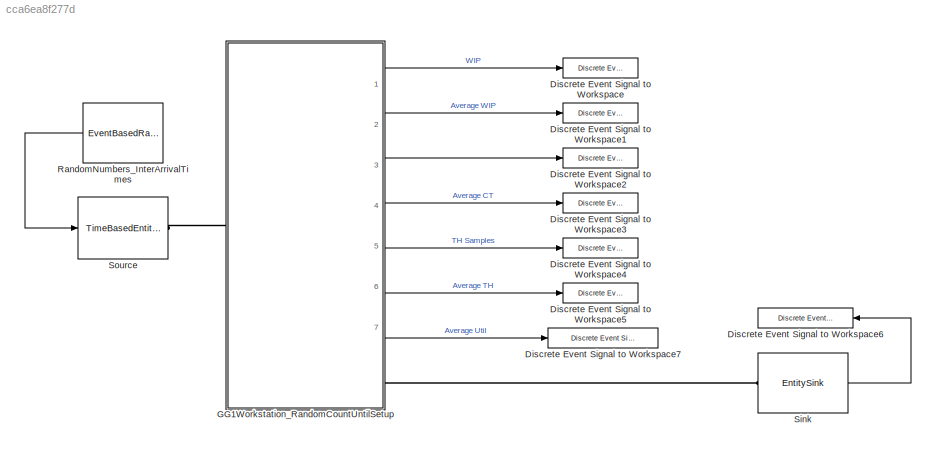
MODEL slx_cca6ea8f277d
KIND model
CONFIG AbsTol = auto
CONFIG FixedStep = auto
CONFIG InitFcn = se_randomizeseeds(gcs, 'Mode', 'All')
CONFIG MaxStep = auto
CONFIG MinStep = auto
CONFIG RelTol = 1e-3
CONFIG SampleTimeConstraint = Unconstrained
CONFIG Solver = ode45
CONFIG SolverMode = SingleTasking
CONFIG SolverName = ode45
CONFIG StartTime = 0.0
CONFIG StopTime = 50000
BLOCK [Reference] Discrete Event Signal to Workspace  REF=simeventslib/SimEvents
Sinks/Discrete Event Signal
to Workspace
  Decimation = 1
  MaxDataPoints = inf
  Ports = [1]
  SaveFormat = Structure With Time
  SourceBlock = simeventslib/SimEvents\nSinks/Discrete Event Signal\nto Workspace
  SourceType = Discrete Event Signal to Workspace
  VariableName = WIP_samples
  isMonitorOnly = off
  isRecordIC = off
BLOCK [Reference] Discrete Event Signal to Workspace1  REF=simeventslib/SimEvents
Sinks/Discrete Event Signal
to Workspace
  Decimation = 1
  MaxDataPoints = inf
  Ports = [1]
  SaveFormat = Structure With Time
  SourceBlock = simeventslib/SimEvents\nSinks/Discrete Event Signal\nto Workspace
  SourceType = Discrete Event Signal to Workspace
  VariableName = WIP_average
  isMonitorOnly = off
  isRecordIC = off
BLOCK [Reference] Discrete Event Signal to Workspace2  REF=simeventslib/SimEvents
Sinks/Discrete Event Signal
to Workspace
  Decimation = 1
  MaxDataPoints = inf
  Ports = [1]
  SaveFormat = Structure With Time
  SourceBlock = simeventslib/SimEvents\nSinks/Discrete Event Signal\nto Workspace
  SourceType = Discrete Event Signal to Workspace
  VariableName = CT_samples
  isMonitorOnly = off
  isRecordIC = off
BLOCK [Reference] Discrete Event Signal to Workspace3  REF=simeventslib/SimEvents
Sinks/Discrete Event Signal
to Workspace
  Decimation = 1
  MaxDataPoints = inf
  Ports = [1]
  SaveFormat = Structure With Time
  SourceBlock = simeventslib/SimEvents\nSinks/Discrete Event Signal\nto Workspace
  SourceType = Discrete Event Signal to Workspace
  VariableName = CT_average
  isMonitorOnly = off
  isRecordIC = off
BLOCK [Reference] Discrete Event Signal to Workspace4  REF=simeventslib/SimEvents
Sinks/Discrete Event Signal
to Workspace
  Decimation = 1
  MaxDataPoints = inf
  Ports = [1]
  SaveFormat = Structure With Time
  SourceBlock = simeventslib/SimEvents\nSinks/Discrete Event Signal\nto Workspace
  SourceType = Discrete Event Signal to Workspace
  VariableName = TH_samples
  isMonitorOnly = off
  isRecordIC = off
BLOCK [Reference] Discrete Event Signal to Workspace5  REF=simeventslib/SimEvents
Sinks/Discrete Event Signal
to Workspace
  Decimation = 1
  MaxDataPoints = inf
  Ports = [1]
  SaveFormat = Structure With Time
  SourceBlock = simeventslib/SimEvents\nSinks/Discrete Event Signal\nto Workspace
  SourceType = Discrete Event Signal to Workspace
  VariableName = TH_average
  isMonitorOnly = off
  isRecordIC = off
BLOCK [Reference] Discrete Event Signal to Workspace6  REF=simeventslib/SimEvents
Sinks/Discrete Event Signal
to Workspace
  Decimation = 1
  MaxDataPoints = inf
  Ports = [1]
  SaveFormat = Structure With Time
  SourceBlock = simeventslib/SimEvents\nSinks/Discrete Event Signal\nto Workspace
  SourceType = Discrete Event Signal to Workspace
  VariableName = nDepartures
  isMonitorOnly = off
  isRecordIC = off
BLOCK [Reference] Discrete Event Signal to Workspace7  REF=simeventslib/SimEvents
Sinks/Discrete Event Signal
to Workspace
  Decimation = 1
  MaxDataPoints = inf
  Ports = [1]
  SaveFormat = Structure With Time
  SourceBlock = simeventslib/SimEvents\nSinks/Discrete Event Signal\nto Workspace
  SourceType = Discrete Event Signal to Workspace
  VariableName = uServers_average
  isMonitorOnly = off
  isRecordIC = off
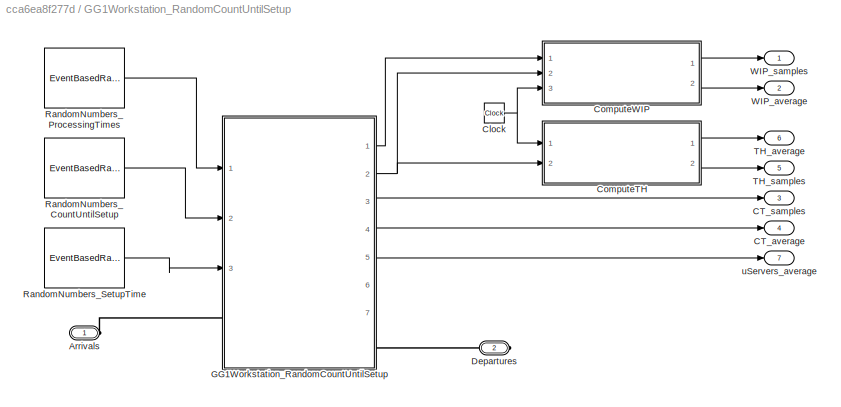
BLOCK [SubSystem] GG1Workstation_RandomCountUntilSetup
  CopyFcn = set_param(gcb, 'LinkStatus', 'none');
  InitFcn = se_randomizeseeds(gcs, 'Mode', 'All')
  Ports = [0, 7, 0, 0, 0, 1, 1]
  RequestExecContextInheritance = off
BLOCK [PMIOPort] GG1Workstation_RandomCountUntilSetup/Arrivals
  Port = 1
  Side = Left
BLOCK [Outport] GG1Workstation_RandomCountUntilSetup/CT_average
  IconDisplay = Port number
  Port = 4
BLOCK [Outport] GG1Workstation_RandomCountUntilSetup/CT_samples
  IconDisplay = Port number
  Port = 3
BLOCK [Clock] GG1Workstation_RandomCountUntilSetup/Clock
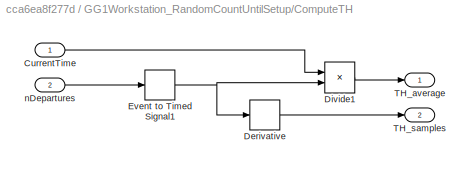
BLOCK [SubSystem] GG1Workstation_RandomCountUntilSetup/ComputeTH
  Ports = [2, 2]
  RequestExecContextInheritance = off
BLOCK [Inport] GG1Workstation_RandomCountUntilSetup/ComputeTH/CurrentTime
  IconDisplay = Port number
BLOCK [Derivative] GG1Workstation_RandomCountUntilSetup/ComputeTH/Derivative
BLOCK [Product] GG1Workstation_RandomCountUntilSetup/ComputeTH/Divide1
  InputSameDT = off
  Inputs = /*
  OutDataTypeStr = Inherit: Inherit via internal rule
  Ports = [2, 1]
  RndMeth = Floor
  SaturateOnIntegerOverflow = off
BLOCK [EventToTimedSignal] GG1Workstation_RandomCountUntilSetup/ComputeTH/Event to Timed Signal1
  InputPortMap = u0
  OutputPortMap = o0
  Ports = [1, 1]
BLOCK [Outport] GG1Workstation_RandomCountUntilSetup/ComputeTH/TH_average
  IconDisplay = Port number
BLOCK [Outport] GG1Workstation_RandomCountUntilSetup/ComputeTH/TH_samples
  IconDisplay = Port number
  Port = 2
BLOCK [Inport] GG1Workstation_RandomCountUntilSetup/ComputeTH/nDepartures
  IconDisplay = Port number
  Port = 2
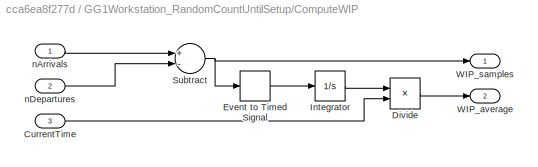
BLOCK [SubSystem] GG1Workstation_RandomCountUntilSetup/ComputeWIP
  Ports = [3, 2]
  RequestExecContextInheritance = off
BLOCK [Inport] GG1Workstation_RandomCountUntilSetup/ComputeWIP/CurrentTime
  IconDisplay = Port number
  Port = 3
BLOCK [Product] GG1Workstation_RandomCountUntilSetup/ComputeWIP/Divide
  InputSameDT = off
  Inputs = */
  OutDataTypeStr = Inherit: Inherit via internal rule
  Ports = [2, 1]
  RndMeth = Floor
  SaturateOnIntegerOverflow = off
BLOCK [EventToTimedSignal] GG1Workstation_RandomCountUntilSetup/ComputeWIP/Event to Timed Signal
  InputPortMap = u0
  OutputPortMap = o0
  Ports = [1, 1]
BLOCK [Integrator] GG1Workstation_RandomCountUntilSetup/ComputeWIP/Integrator
  Ports = [1, 1]
BLOCK [Sum] GG1Workstation_RandomCountUntilSetup/ComputeWIP/Subtract
  InputSameDT = off
  Inputs = +-
  OutDataTypeStr = Inherit: Inherit via internal rule
  Ports = [2, 1]
  SaturateOnIntegerOverflow = off
BLOCK [Outport] GG1Workstation_RandomCountUntilSetup/ComputeWIP/WIP_average
  IconDisplay = Port number
  Port = 2
BLOCK [Outport] GG1Workstation_RandomCountUntilSetup/ComputeWIP/WIP_samples
  IconDisplay = Port number
BLOCK [Inport] GG1Workstation_RandomCountUntilSetup/ComputeWIP/nArrivals
  IconDisplay = Port number
BLOCK [Inport] GG1Workstation_RandomCountUntilSetup/ComputeWIP/nDepartures
  IconDisplay = Port number
  Port = 2
BLOCK [PMIOPort] GG1Workstation_RandomCountUntilSetup/Departures
  Port = 2
  Side = Right
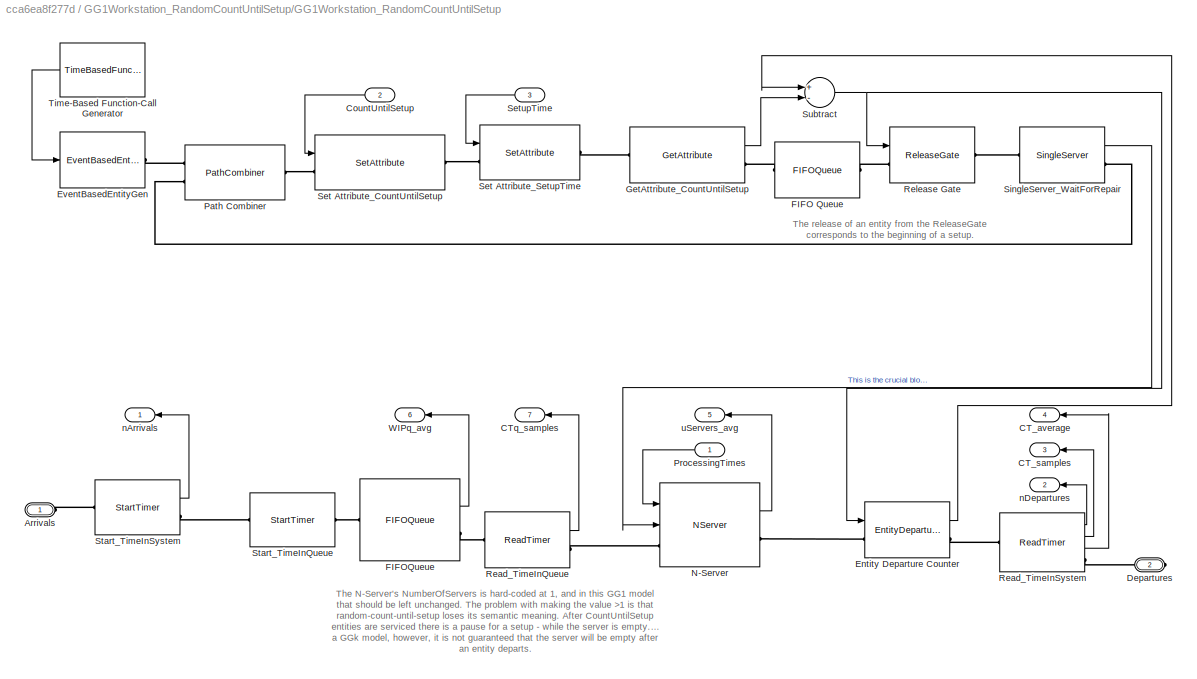
BLOCK [SubSystem] GG1Workstation_RandomCountUntilSetup/GG1Workstation_RandomCountUntilSetup
  Ports = [3, 7, 0, 0, 0, 1, 1]
  RequestExecContextInheritance = off
BLOCK [PMIOPort] GG1Workstation_RandomCountUntilSetup/GG1Workstation_RandomCountUntilSetup/Arrivals
  Port = 1
  Side = Left
BLOCK [Outport] GG1Workstation_RandomCountUntilSetup/GG1Workstation_RandomCountUntilSetup/CT_average
  IconDisplay = Port number
  Port = 4
BLOCK [Outport] GG1Workstation_RandomCountUntilSetup/GG1Workstation_RandomCountUntilSetup/CT_samples
  IconDisplay = Port number
  Port = 3
BLOCK [Outport] GG1Workstation_RandomCountUntilSetup/GG1Workstation_RandomCountUntilSetup/CTq_samples
  IconDisplay = Port number
  Port = 7
BLOCK [Inport] GG1Workstation_RandomCountUntilSetup/GG1Workstation_RandomCountUntilSetup/CountUntilSetup
  IconDisplay = Port number
  Port = 2
BLOCK [PMIOPort] GG1Workstation_RandomCountUntilSetup/GG1Workstation_RandomCountUntilSetup/Departures
  Port = 2
  Side = Right
BLOCK [EntityDepartureCounter] GG1Workstation_RandomCountUntilSetup/GG1Workstation_RandomCountUntilSetup/Entity Departure Counter
  CounterResetTypeOption = Trigger from port tr
  InputPortMap = u0
  NumberDepartedToAttribute = off
  NumberDepartedToSignal = on
  OutputPortMap = o0
  Ports = [1, 1, 0, 0, 0, 1, 1]
BLOCK [EventBasedEntityGenerator] GG1Workstation_RandomCountUntilSetup/GG1Workstation_RandomCountUntilSetup/EventBasedEntityGen
  GenerateEntitiesUpon = Function call from port fcn
  InputPortMap = u0
  Ports = [1, 0, 0, 0, 0, 0, 1]
BLOCK [FIFOQueue] GG1Workstation_RandomCountUntilSetup/GG1Workstation_RandomCountUntilSetup/FIFO Queue
  Capacity = Inf
  Ports = [0, 0, 0, 0, 0, 1, 1]
BLOCK [FIFOQueue] GG1Workstation_RandomCountUntilSetup/GG1Workstation_RandomCountUntilSetup/FIFOQueue
  Capacity = Inf
  OutputPortMap = o3
  Ports = [0, 1, 0, 0, 0, 1, 1]
  StatAverageQueueLength = on
BLOCK [GetAttribute] GG1Workstation_RandomCountUntilSetup/GG1Workstation_RandomCountUntilSetup/GetAttribute_CountUntilSetup
  AttributeName = CountUntilSetup
  EvaluatedDefaultAttributeValue = { []}
  OutputPortMap = o1
  Ports = [0, 1, 0, 0, 0, 1, 1]
BLOCK [NServer] GG1Workstation_RandomCountUntilSetup/GG1Workstation_RandomCountUntilSetup/N-Server
  AllowServiceControl = on
  BlockWhileSignalOn = on
  InputPortMap = u0,u1
  NumberOfServers = 1
  OutputPortMap = o5
  Ports = [2, 1, 0, 0, 0, 1, 1]
  ServiceTimeFrom = Signal port t
  StatUtilization = on
BLOCK [PathCombiner] GG1Workstation_RandomCountUntilSetup/GG1Workstation_RandomCountUntilSetup/Path Combiner
  NumberInputPorts = 2
  Ports = [0, 0, 0, 0, 0, 2, 1]
BLOCK [Inport] GG1Workstation_RandomCountUntilSetup/GG1Workstation_RandomCountUntilSetup/ProcessingTimes
  IconDisplay = Port number
BLOCK [ReadTimer] GG1Workstation_RandomCountUntilSetup/GG1Workstation_RandomCountUntilSetup/Read_TimeInQueue
  OutputPortMap = o2
  Ports = [0, 1, 0, 0, 0, 1, 1]
  StatTimeElapsed = on
  TimerTag = TimeInQueue
BLOCK [ReadTimer] GG1Workstation_RandomCountUntilSetup/GG1Workstation_RandomCountUntilSetup/Read_TimeInSystem
  OutputPortMap = o0,o2,o3
  Ports = [0, 3, 0, 0, 0, 1, 1]
  StatAverageTimeElapsed = on
  StatNumberDeparted = on
  StatTimeElapsed = on
  TimerTag = TimeInSystem
BLOCK [ReleaseGate] GG1Workstation_RandomCountUntilSetup/GG1Workstation_RandomCountUntilSetup/Release Gate
  InputPortMap = u0
  OpenGateUpon = Trigger from port tr
  Ports = [1, 0, 0, 0, 0, 1, 1]
BLOCK [SetAttribute] GG1Workstation_RandomCountUntilSetup/GG1Workstation_RandomCountUntilSetup/Set Attribute_CountUntilSetup
  AttributeFrom = Signal port
  AttributeName = CountUntilSetup
  EvaluatedAttributeValue = { []}
  InputPortMap = u0
  Ports = [1, 0, 0, 0, 0, 1, 1]
BLOCK [SetAttribute] GG1Workstation_RandomCountUntilSetup/GG1Workstation_RandomCountUntilSetup/Set Attribute_SetupTime
  AttributeFrom = Signal port
  AttributeName = SetupTime
  EvaluatedAttributeValue = { []}
  InputPortMap = u0
  Ports = [1, 0, 0, 0, 0, 1, 1]
BLOCK [Inport] GG1Workstation_RandomCountUntilSetup/GG1Workstation_RandomCountUntilSetup/SetupTime
  IconDisplay = Port number
  Port = 3
BLOCK [SingleServer] GG1Workstation_RandomCountUntilSetup/GG1Workstation_RandomCountUntilSetup/SingleServer_WaitForRepair
  AttributeName = SetupTime
  OutputPortMap = o1
  Ports = [0, 1, 0, 0, 0, 1, 1]
  ServiceTimeFrom = Attribute
  StatNumberInBlock = on
BLOCK [StartTimer] GG1Workstation_RandomCountUntilSetup/GG1Workstation_RandomCountUntilSetup/Start_TimeInQueue
  Ports = [0, 0, 0, 0, 0, 1, 1]
  TimerStartedOption = Restart
  TimerTag = TimeInQueue
BLOCK [StartTimer] GG1Workstation_RandomCountUntilSetup/GG1Workstation_RandomCountUntilSetup/Start_TimeInSystem
  OutputPortMap = o0
  Ports = [0, 1, 0, 0, 0, 1, 1]
  StatNumberDeparted = on
  TimerStartedOption = Restart
  TimerTag = TimeInSystem
BLOCK [Sum] GG1Workstation_RandomCountUntilSetup/GG1Workstation_RandomCountUntilSetup/Subtract
  InputSameDT = off
  Inputs = +-
  OutDataTypeStr = Inherit: Inherit via internal rule
  Ports = [2, 1]
  SaturateOnIntegerOverflow = off
BLOCK [TimeBasedFunctionCallGenerator] GG1Workstation_RandomCountUntilSetup/GG1Workstation_RandomCountUntilSetup/Time-Based Function-Call Generator
  EventGenerationMode = Only at simulation start
  OutputPortMap = o0
  Ports = [0, 1]
BLOCK [Outport] GG1Workstation_RandomCountUntilSetup/GG1Workstation_RandomCountUntilSetup/WIPq_avg
  IconDisplay = Port number
  Port = 6
BLOCK [Outport] GG1Workstation_RandomCountUntilSetup/GG1Workstation_RandomCountUntilSetup/nArrivals
  IconDisplay = Port number
BLOCK [Outport] GG1Workstation_RandomCountUntilSetup/GG1Workstation_RandomCountUntilSetup/nDepartures
  IconDisplay = Port number
  Port = 2
BLOCK [Outport] GG1Workstation_RandomCountUntilSetup/GG1Workstation_RandomCountUntilSetup/uServers_avg
  IconDisplay = Port number
  Port = 5
BLOCK [EventBasedRandomNumber] GG1Workstation_RandomCountUntilSetup/RandomNumbers_CountUntilSetup
  Distribution = Geometric
  OutputPortMap = o0
  Ports = [0, 1]
  Seed = 60986
  cdfVecCont = 40
  maxBeta = 40
  maxTri = 10
  maxUnid = 40
  maxUnif = 40
  meanExp = 10
  meanNorm = 1000
  meanPoiss = 10
  minBeta = 40
  minTri = 10
  minUnid = 40
  minUnif = 40
  modeTri = 10
  numTrialBino = 40
  numValueUnid = 40
  pOneBern = 40
  pSuccessBino = 40
  pSuccessGeo = 1/11
  probVecDisc = 40
  scaleGam = 166.6667
  scaleLogl = 40
  scaleLogn = 40
  scaleWbl = 40
  shape1Beta = 40
  shape2Beta = 40
  shapeGam = 0.72
  shapeLogn = 40
  shapeWbl = 40
  stdNorm = 1.4901e-08
  thresholdLogl = 40
  thresholdLogn = 40
  thresholdWbl = 40
  valueVecCont = 40
  valueVecDisc = 40
BLOCK [EventBasedRandomNumber] GG1Workstation_RandomCountUntilSetup/RandomNumbers_ProcessingTimes
  Distribution = Triangular
  OutputPortMap = o0
  Ports = [0, 1]
  Seed = 11535
  cdfVecCont = 40
  maxBeta = 40
  maxTri = 1.4
  maxUnid = 40
  maxUnif = 40
  meanNorm = 95
  meanPoiss = 40
  minBeta = 40
  minTri = 0.4
  minUnid = 40
  minUnif = 40
  modeTri = 1.35
  numTrialBino = 40
  numValueUnid = 40
  pOneBern = 40
  pSuccessBino = 40
  pSuccessGeo = 40
  probVecDisc = 40
  scaleGam = 40
  scaleLogl = 40
  scaleLogn = 40
  scaleWbl = 40
  shape1Beta = 40
  shape2Beta = 40
  shapeGam = 40
  shapeLogn = 40
  shapeWbl = 40
  stdNorm = eps
  thresholdGam = 40
  thresholdLogl = 40
  thresholdLogn = 40
  thresholdWbl = 40
  valueVecCont = 40
  valueVecDisc = 40
BLOCK [EventBasedRandomNumber] GG1Workstation_RandomCountUntilSetup/RandomNumbers_SetupTime
  OutputPortMap = o0
  Ports = [0, 1]
  Seed = 14752
  cdfVecCont = 40
  maxBeta = 40
  maxTri = 38
  maxUnid = 40
  maxUnif = 40
  meanExp = 2
  meanNorm = eps
  meanPoiss = 40
  minBeta = 40
  minTri = 38
  minUnid = 40
  minUnif = 40
  modeTri = 38
  numTrialBino = 40
  numValueUnid = 40
  pOneBern = 40
  pSuccessBino = 40
  probVecDisc = [0 1]
  scaleGam = 20
  scaleLogl = 40
  scaleLogn = 40
  scaleWbl = 40
  shape1Beta = 40
  shape2Beta = 40
  shapeLogn = 40
  shapeWbl = 40
  stdNorm = eps
  thresholdLogl = 40
  thresholdLogn = 40
  thresholdWbl = 40
  valueVecCont = 40
BLOCK [Outport] GG1Workstation_RandomCountUntilSetup/TH_average
  IconDisplay = Port number
  Port = 6
BLOCK [Outport] GG1Workstation_RandomCountUntilSetup/TH_samples
  IconDisplay = Port number
  Port = 5
BLOCK [Outport] GG1Workstation_RandomCountUntilSetup/WIP_average
  IconDisplay = Port number
  Port = 2
BLOCK [Outport] GG1Workstation_RandomCountUntilSetup/WIP_samples
  IconDisplay = Port number
BLOCK [Outport] GG1Workstation_RandomCountUntilSetup/uServers_average
  IconDisplay = Port number
  Port = 7
BLOCK [EventBasedRandomNumber] RandomNumbers_InterArrivalTimes
  OutputPortMap = o0
  Ports = [0, 1]
  Seed = 17969
  meanExp = 1.5
  meanNorm = 100
  scaleGam = 10
  stdNorm = eps
BLOCK [EntitySink] Sink
  OutputPortMap = o0
  Ports = [0, 1, 0, 0, 0, 1]
  StatNumberArrived = on
BLOCK [TimeBasedEntityGenerator] Source
  GenerateEntitiesUpon = Intergeneration time from port t
  InputPortMap = u0
  Ports = [1, 0, 0, 0, 0, 0, 1]
ANNOTATION GG1Workstation_RandomCountUntilSetup/GG1Workstation_RandomCountUntilSetup: The N-Server's NumberOfServers is hard-coded at 1, and in this GG1 model that should be left unchanged. The problem with making the value >1 is that random-count-until-setup loses its semantic meaning. After CountUntilSetup entities are serviced there is a pause for a setup - while the server is empty. In a GGk model, however, it is not guaranteed that the server will be empty after an entity depa...<+4ch>
ANNOTATION GG1Workstation_RandomCountUntilSetup/GG1Workstation_RandomCountUntilSetup: The release of an entity from the ReleaseGate corresponds to the beginning of a setup.
NET GG1Workstation_RandomCountUntilSetup/Clock:1 -> GG1Workstation_RandomCountUntilSetup/ComputeTH:1, GG1Workstation_RandomCountUntilSetup/ComputeWIP:3
LINE GG1Workstation_RandomCountUntilSetup/ComputeTH/CurrentTime:1 -> GG1Workstation_RandomCountUntilSetup/ComputeTH/Divide1:1
LINE GG1Workstation_RandomCountUntilSetup/ComputeTH/Derivative:1 -> GG1Workstation_RandomCountUntilSetup/ComputeTH/TH_samples:1
LINE GG1Workstation_RandomCountUntilSetup/ComputeTH/Divide1:1 -> GG1Workstation_RandomCountUntilSetup/ComputeTH/TH_average:1
NET GG1Workstation_RandomCountUntilSetup/ComputeTH/Event to Timed Signal1:1 -> GG1Workstation_RandomCountUntilSetup/ComputeTH/Derivative:1, GG1Workstation_RandomCountUntilSetup/ComputeTH/Divide1:2
LINE GG1Workstation_RandomCountUntilSetup/ComputeTH/nDepartures:1 -> GG1Workstation_RandomCountUntilSetup/ComputeTH/Event to Timed Signal1:1
LINE GG1Workstation_RandomCountUntilSetup/ComputeTH:1 -> GG1Workstation_RandomCountUntilSetup/TH_average:1
LINE GG1Workstation_RandomCountUntilSetup/ComputeTH:2 -> GG1Workstation_RandomCountUntilSetup/TH_samples:1
LINE GG1Workstation_RandomCountUntilSetup/ComputeWIP/CurrentTime:1 -> GG1Workstation_RandomCountUntilSetup/ComputeWIP/Divide:2
LINE GG1Workstation_RandomCountUntilSetup/ComputeWIP/Divide:1 -> GG1Workstation_RandomCountUntilSetup/ComputeWIP/WIP_average:1
LINE GG1Workstation_RandomCountUntilSetup/ComputeWIP/Event to Timed Signal:1 -> GG1Workstation_RandomCountUntilSetup/ComputeWIP/Integrator:1
LINE GG1Workstation_RandomCountUntilSetup/ComputeWIP/Integrator:1 -> GG1Workstation_RandomCountUntilSetup/ComputeWIP/Divide:1
NET GG1Workstation_RandomCountUntilSetup/ComputeWIP/Subtract:1 -> GG1Workstation_RandomCountUntilSetup/ComputeWIP/Event to Timed Signal:1, GG1Workstation_RandomCountUntilSetup/ComputeWIP/WIP_samples:1
LINE GG1Workstation_RandomCountUntilSetup/ComputeWIP/nArrivals:1 -> GG1Workstation_RandomCountUntilSetup/ComputeWIP/Subtract:1
LINE GG1Workstation_RandomCountUntilSetup/ComputeWIP/nDepartures:1 -> GG1Workstation_RandomCountUntilSetup/ComputeWIP/Subtract:2
LINE GG1Workstation_RandomCountUntilSetup/ComputeWIP:1 -> GG1Workstation_RandomCountUntilSetup/WIP_samples:1
LINE GG1Workstation_RandomCountUntilSetup/ComputeWIP:2 -> GG1Workstation_RandomCountUntilSetup/WIP_average:1
LINE GG1Workstation_RandomCountUntilSetup/GG1Workstation_RandomCountUntilSetup/CountUntilSetup:1 -> GG1Workstation_RandomCountUntilSetup/GG1Workstation_RandomCountUntilSetup/Set Attribute_CountUntilSetup:1
LINE GG1Workstation_RandomCountUntilSetup/GG1Workstation_RandomCountUntilSetup/Entity Departure Counter:1 -> GG1Workstation_RandomCountUntilSetup/GG1Workstation_RandomCountUntilSetup/Subtract:1
LINE GG1Workstation_RandomCountUntilSetup/GG1Workstation_RandomCountUntilSetup/FIFOQueue:1 -> GG1Workstation_RandomCountUntilSetup/GG1Workstation_RandomCountUntilSetup/WIPq_avg:1
LINE GG1Workstation_RandomCountUntilSetup/GG1Workstation_RandomCountUntilSetup/GetAttribute_CountUntilSetup:1 -> GG1Workstation_RandomCountUntilSetup/GG1Workstation_RandomCountUntilSetup/Subtract:2
LINE GG1Workstation_RandomCountUntilSetup/GG1Workstation_RandomCountUntilSetup/N-Server:1 -> GG1Workstation_RandomCountUntilSetup/GG1Workstation_RandomCountUntilSetup/uServers_avg:1
LINE GG1Workstation_RandomCountUntilSetup/GG1Workstation_RandomCountUntilSetup/ProcessingTimes:1 -> GG1Workstation_RandomCountUntilSetup/GG1Workstation_RandomCountUntilSetup/N-Server:1
LINE GG1Workstation_RandomCountUntilSetup/GG1Workstation_RandomCountUntilSetup/Read_TimeInQueue:1 -> GG1Workstation_RandomCountUntilSetup/GG1Workstation_RandomCountUntilSetup/CTq_samples:1
LINE GG1Workstation_RandomCountUntilSetup/GG1Workstation_RandomCountUntilSetup/Read_TimeInSystem:1 -> GG1Workstation_RandomCountUntilSetup/GG1Workstation_RandomCountUntilSetup/nDepartures:1
LINE GG1Workstation_RandomCountUntilSetup/GG1Workstation_RandomCountUntilSetup/Read_TimeInSystem:2 -> GG1Workstation_RandomCountUntilSetup/GG1Workstation_RandomCountUntilSetup/CT_samples:1
LINE GG1Workstation_RandomCountUntilSetup/GG1Workstation_RandomCountUntilSetup/Read_TimeInSystem:3 -> GG1Workstation_RandomCountUntilSetup/GG1Workstation_RandomCountUntilSetup/CT_average:1
LINE GG1Workstation_RandomCountUntilSetup/GG1Workstation_RandomCountUntilSetup/SetupTime:1 -> GG1Workstation_RandomCountUntilSetup/GG1Workstation_RandomCountUntilSetup/Set Attribute_SetupTime:1
LINE GG1Workstation_RandomCountUntilSetup/GG1Workstation_RandomCountUntilSetup/SingleServer_WaitForRepair:1 -> GG1Workstation_RandomCountUntilSetup/GG1Workstation_RandomCountUntilSetup/N-Server:2
LINE GG1Workstation_RandomCountUntilSetup/GG1Workstation_RandomCountUntilSetup/Start_TimeInSystem:1 -> GG1Workstation_RandomCountUntilSetup/GG1Workstation_RandomCountUntilSetup/nArrivals:1
NET GG1Workstation_RandomCountUntilSetup/GG1Workstation_RandomCountUntilSetup/Subtract:1 -> GG1Workstation_RandomCountUntilSetup/GG1Workstation_RandomCountUntilSetup/Entity Departure Counter:1, GG1Workstation_RandomCountUntilSetup/GG1Workstation_RandomCountUntilSetup/Release Gate:1
LINE GG1Workstation_RandomCountUntilSetup/GG1Workstation_RandomCountUntilSetup/Time-Based Function-Call Generator:1 -> GG1Workstation_RandomCountUntilSetup/GG1Workstation_RandomCountUntilSetup/EventBasedEntityGen:1
LINE GG1Workstation_RandomCountUntilSetup/GG1Workstation_RandomCountUntilSetup:1 -> GG1Workstation_RandomCountUntilSetup/ComputeWIP:1
NET GG1Workstation_RandomCountUntilSetup/GG1Workstation_RandomCountUntilSetup:2 -> GG1Workstation_RandomCountUntilSetup/ComputeTH:2, GG1Workstation_RandomCountUntilSetup/ComputeWIP:2
LINE GG1Workstation_RandomCountUntilSetup/GG1Workstation_RandomCountUntilSetup:3 -> GG1Workstation_RandomCountUntilSetup/CT_samples:1
LINE GG1Workstation_RandomCountUntilSetup/GG1Workstation_RandomCountUntilSetup:4 -> GG1Workstation_RandomCountUntilSetup/CT_average:1
LINE GG1Workstation_RandomCountUntilSetup/GG1Workstation_RandomCountUntilSetup:5 -> GG1Workstation_RandomCountUntilSetup/uServers_average:1
LINE GG1Workstation_RandomCountUntilSetup/RandomNumbers_CountUntilSetup:1 -> GG1Workstation_RandomCountUntilSetup/GG1Workstation_RandomCountUntilSetup:2
LINE GG1Workstation_RandomCountUntilSetup/RandomNumbers_ProcessingTimes:1 -> GG1Workstation_RandomCountUntilSetup/GG1Workstation_RandomCountUntilSetup:1
LINE GG1Workstation_RandomCountUntilSetup/RandomNumbers_SetupTime:1 -> GG1Workstation_RandomCountUntilSetup/GG1Workstation_RandomCountUntilSetup:3
LINE GG1Workstation_RandomCountUntilSetup:1 -> Discrete Event Signal to Workspace:1
LINE GG1Workstation_RandomCountUntilSetup:2 -> Discrete Event Signal to Workspace1:1
LINE GG1Workstation_RandomCountUntilSetup:3 -> Discrete Event Signal to Workspace2:1
LINE GG1Workstation_RandomCountUntilSetup:4 -> Discrete Event Signal to Workspace3:1
LINE GG1Workstation_RandomCountUntilSetup:5 -> Discrete Event Signal to Workspace4:1
LINE GG1Workstation_RandomCountUntilSetup:6 -> Discrete Event Signal to Workspace5:1
LINE GG1Workstation_RandomCountUntilSetup:7 -> Discrete Event Signal to Workspace7:1
LINE RandomNumbers_InterArrivalTimes:1 -> Source:1
LINE Sink:1 -> Discrete Event Signal to Workspace6:1
PLINE GG1Workstation_RandomCountUntilSetup/Arrivals:RConn1 -- GG1Workstation_RandomCountUntilSetup/GG1Workstation_RandomCountUntilSetup:LConn1
PLINE GG1Workstation_RandomCountUntilSetup/Departures:RConn1 -- GG1Workstation_RandomCountUntilSetup/GG1Workstation_RandomCountUntilSetup:RConn1
PLINE GG1Workstation_RandomCountUntilSetup/GG1Workstation_RandomCountUntilSetup/Arrivals:RConn1 -- GG1Workstation_RandomCountUntilSetup/GG1Workstation_RandomCountUntilSetup/Start_TimeInSystem:LConn1
PLINE GG1Workstation_RandomCountUntilSetup/GG1Workstation_RandomCountUntilSetup/Departures:RConn1 -- GG1Workstation_RandomCountUntilSetup/GG1Workstation_RandomCountUntilSetup/Read_TimeInSystem:RConn1
PLINE GG1Workstation_RandomCountUntilSetup/GG1Workstation_RandomCountUntilSetup/Entity Departure Counter:LConn1 -- GG1Workstation_RandomCountUntilSetup/GG1Workstation_RandomCountUntilSetup/N-Server:RConn1
PLINE GG1Workstation_RandomCountUntilSetup/GG1Workstation_RandomCountUntilSetup/Entity Departure Counter:RConn1 -- GG1Workstation_RandomCountUntilSetup/GG1Workstation_RandomCountUntilSetup/Read_TimeInSystem:LConn1
PLINE GG1Workstation_RandomCountUntilSetup/GG1Workstation_RandomCountUntilSetup/EventBasedEntityGen:RConn1 -- GG1Workstation_RandomCountUntilSetup/GG1Workstation_RandomCountUntilSetup/Path Combiner:LConn1
PLINE GG1Workstation_RandomCountUntilSetup/GG1Workstation_RandomCountUntilSetup/FIFO Queue:LConn1 -- GG1Workstation_RandomCountUntilSetup/GG1Workstation_RandomCountUntilSetup/GetAttribute_CountUntilSetup:RConn1
PLINE GG1Workstation_RandomCountUntilSetup/GG1Workstation_RandomCountUntilSetup/FIFO Queue:RConn1 -- GG1Workstation_RandomCountUntilSetup/GG1Workstation_RandomCountUntilSetup/Release Gate:LConn1
PLINE GG1Workstation_RandomCountUntilSetup/GG1Workstation_RandomCountUntilSetup/FIFOQueue:LConn1 -- GG1Workstation_RandomCountUntilSetup/GG1Workstation_RandomCountUntilSetup/Start_TimeInQueue:RConn1
PLINE GG1Workstation_RandomCountUntilSetup/GG1Workstation_RandomCountUntilSetup/FIFOQueue:RConn1 -- GG1Workstation_RandomCountUntilSetup/GG1Workstation_RandomCountUntilSetup/Read_TimeInQueue:LConn1
PLINE GG1Workstation_RandomCountUntilSetup/GG1Workstation_RandomCountUntilSetup/GetAttribute_CountUntilSetup:LConn1 -- GG1Workstation_RandomCountUntilSetup/GG1Workstation_RandomCountUntilSetup/Set Attribute_SetupTime:RConn1
PLINE GG1Workstation_RandomCountUntilSetup/GG1Workstation_RandomCountUntilSetup/N-Server:LConn1 -- GG1Workstation_RandomCountUntilSetup/GG1Workstation_RandomCountUntilSetup/Read_TimeInQueue:RConn1
PLINE GG1Workstation_RandomCountUntilSetup/GG1Workstation_RandomCountUntilSetup/Path Combiner:LConn2 -- GG1Workstation_RandomCountUntilSetup/GG1Workstation_RandomCountUntilSetup/SingleServer_WaitForRepair:RConn1
PLINE GG1Workstation_RandomCountUntilSetup/GG1Workstation_RandomCountUntilSetup/Path Combiner:RConn1 -- GG1Workstation_RandomCountUntilSetup/GG1Workstation_RandomCountUntilSetup/Set Attribute_CountUntilSetup:LConn1
PLINE GG1Workstation_RandomCountUntilSetup/GG1Workstation_RandomCountUntilSetup/Release Gate:RConn1 -- GG1Workstation_RandomCountUntilSetup/GG1Workstation_RandomCountUntilSetup/SingleServer_WaitForRepair:LConn1
PLINE GG1Workstation_RandomCountUntilSetup/GG1Workstation_RandomCountUntilSetup/Set Attribute_CountUntilSetup:RConn1 -- GG1Workstation_RandomCountUntilSetup/GG1Workstation_RandomCountUntilSetup/Set Attribute_SetupTime:LConn1
PLINE GG1Workstation_RandomCountUntilSetup/GG1Workstation_RandomCountUntilSetup/Start_TimeInQueue:LConn1 -- GG1Workstation_RandomCountUntilSetup/GG1Workstation_RandomCountUntilSetup/Start_TimeInSystem:RConn1
PLINE GG1Workstation_RandomCountUntilSetup:LConn1 -- Source:RConn1
PLINE GG1Workstation_RandomCountUntilSetup:RConn1 -- Sink:LConn1
note: NET lines group one-source signal fan-out (src -> all destinations, sorted); 1:1 wires keep LINE
